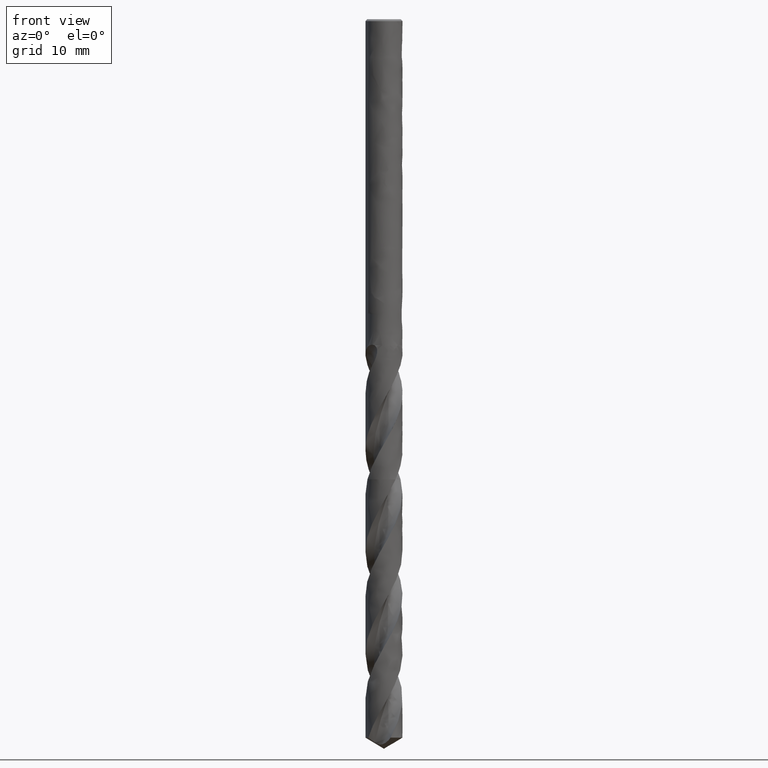
[diagram: clean part render]
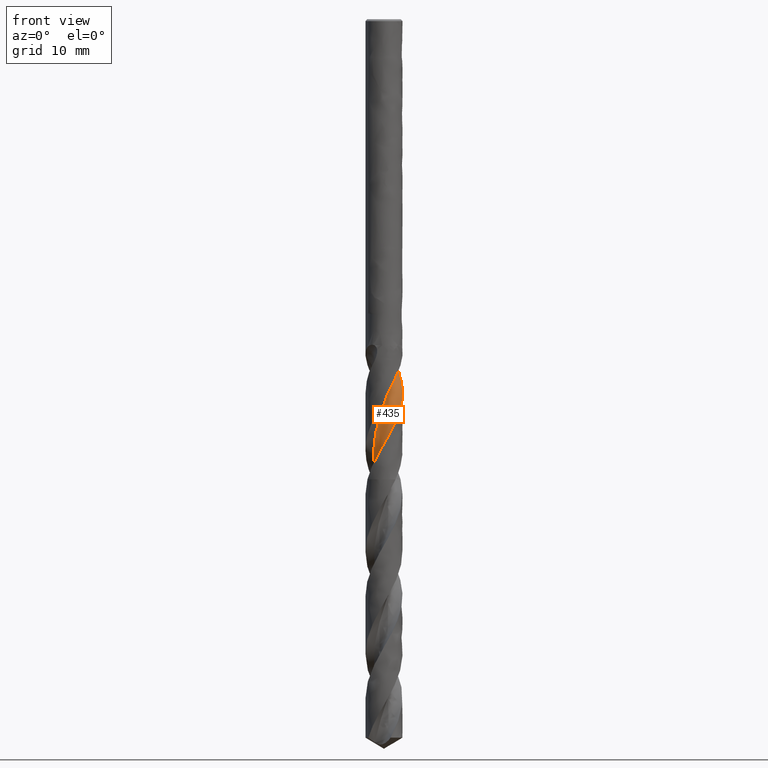
[diagram: same view with one face highlighted and labeled with its STEP entity id]
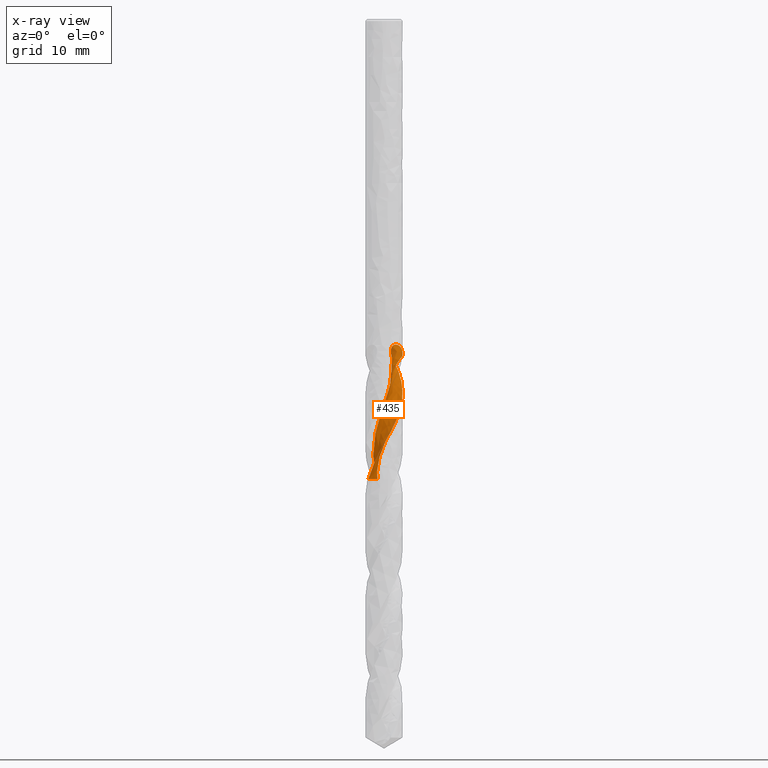
[diagram: x-ray of the same camera — body ghosted, the highlighted face saturated]
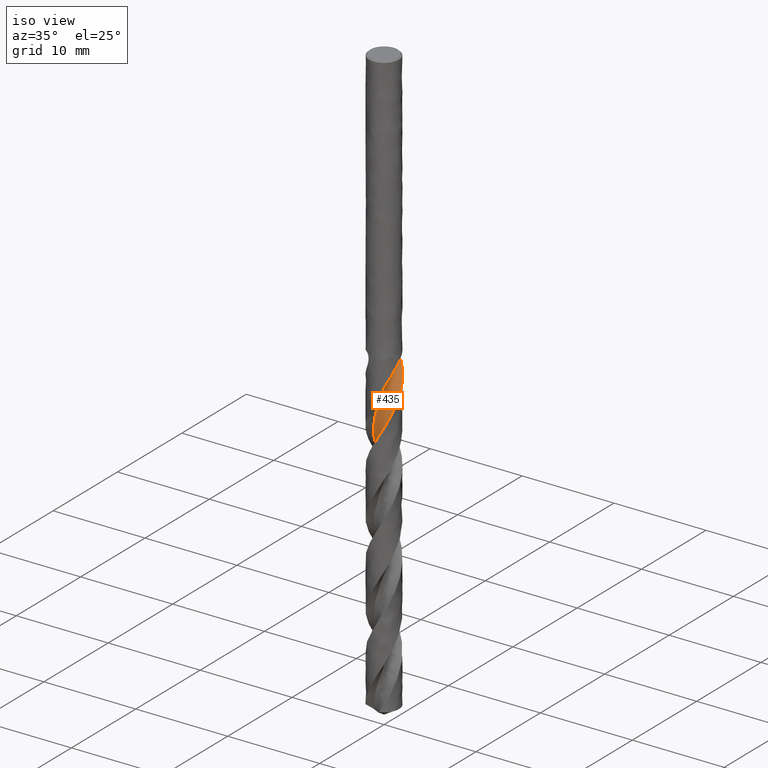
[diagram: same view with one face highlighted and labeled with its STEP entity id]
A machine part, front view. The second image highlights one B-rep face of the part: STEP entity #435.
The next image is the same camera in x-ray: the body ghosted, the highlighted face saturated — about 0% of this face is hidden behind the body in this view.
A second angle (iso view) of the same face is appended — the face is thin or edge-on in the first view.
In plain terms, the highlighted face is a freeform B-spline surface patch.
Its self-contained STEP definition (entity closure, byte-faithful):
#131 = VERTEX_POINT('', #132);
#132 = CARTESIAN_POINT('', (-0.686757036045981, 0.639588430512684, -41.));
#138 = EDGE_CURVE('', #131, #139, #141, .T.);
#139 = VERTEX_POINT('', #140);
#140 = CARTESIAN_POINT('', (1.64538893806369, -0.123268984329499, -29.9833429949825));
#141 = B_SPLINE_CURVE_WITH_KNOTS('', 3, (#142, #143, #144, #145, #146, #147, #148, #149, #150, #151, #152, #153, #154, #155, #156, #157, #158, #159, #160, #161, #162, #163, #164, #165, #166, #167, #168, #169, #170, #171, #172, #173, #174, #175, #176, #177, #178, #179, #180, #181), .UNSPECIFIED., .F., .U., (4, 1, 1, 1, 1, 1, 1, 1, 1, 1, 1, 1, 1, 1, 1, 1, 1, 1, 1, 1, 1, 1, 1, 1, 1, 1, 1, 1, 1, 1, 1, 1, 1, 1, 1, 1, 1, 4), (24.05, 24.2352941176471, 24.5382352941176, 24.8411764705882, 25.1441176470588, 25.4470588235294, 25.75, 26.0529411764706, 26.3558823529412, 26.6588235294118, 26.9617647058823, 27.2647058823529, 27.5676470588235, 27.8705882352941, 28.1735294117647, 28.4764705882353, 28.7794117647059, 29.0823529411765, 29.3852941176471, 29.6882352941176, 29.9911764705882, 30.2941176470588, 30.5970588235294, 30.9, 31.2029411764706, 31.5058823529412, 31.8088235294118, 32.1117647058824, 32.4147058823529, 32.7176470588235, 33.0205882352941, 33.3235294117647, 33.6264705882353, 33.9294117647059, 34.2323529411765, 34.5352941176471, 34.8382352941176, 35.0666570050175), .UNSPECIFIED.);
#142 = CARTESIAN_POINT('', (-0.686757036045981, 0.639588430512685, -41.));
#143 = CARTESIAN_POINT('', (-0.700665932673765, 0.625100771862666, -40.9382352941176));
#144 = CARTESIAN_POINT('', (-0.736114069390146, 0.585738301813656, -40.7754901960784));
#145 = CARTESIAN_POINT('', (-0.788106081213046, 0.517201625864363, -40.5117647058823));
#146 = CARTESIAN_POINT('', (-0.839384088118501, 0.432534128452643, -40.2088235294118));
#147 = CARTESIAN_POINT('', (-0.881630649341023, 0.342826234870914, -39.9058823529412));
#148 = CARTESIAN_POINT('', (-0.914354475800272, 0.249034502189617, -39.6029411764706));
#149 = CARTESIAN_POINT('', (-0.937164869620156, 0.1521629860689, -39.3));
#150 = CARTESIAN_POINT('', (-0.9497762816477, 0.0532527389827138, -38.9970588235294));
#151 = CARTESIAN_POINT('', (-0.952011780668234, -0.0466291259462288, -38.6941176470588));
#152 = CARTESIAN_POINT('', (-0.943805393127224, -0.14640069357702, -38.3911764705882));
#153 = CARTESIAN_POINT('', (-0.925203283588876, -0.244976712027457, -38.0882352941176));
#154 = CARTESIAN_POINT('', (-0.896363757948076, -0.34128014604133, -37.7852941176471));
#155 = CARTESIAN_POINT('', (-0.857556083459058, -0.434253698331497, -37.4823529411765));
#156 = CARTESIAN_POINT('', (-0.809158131795493, -0.522871178485597, -37.1794117647059));
#157 = CARTESIAN_POINT('', (-0.751652863628418, -0.606148599776783, -36.8764705882353));
#158 = CARTESIAN_POINT('', (-0.685623684964381, -0.683154886844246, -36.5735294117647));
#159 = CARTESIAN_POINT('', (-0.611748718521199, -0.753022078649663, -36.2705882352941));
#160 = CARTESIAN_POINT('', (-0.530794040455969, -0.814954922679561, -35.9676470588235));
#161 = CARTESIAN_POINT('', (-0.443605960385043, -0.868239735737724, -35.6647058823529));
#162 = CARTESIAN_POINT('', (-0.351102371074183, -0.912252511578268, -35.3617647058824));
#163 = CARTESIAN_POINT('', (-0.254263435249438, -0.946465897205201, -35.0588235294118));
#164 = CARTESIAN_POINT('', (-0.154121022521543, -0.970456035279019, -34.7558823529412));
#165 = CARTESIAN_POINT('', (-0.0517495396380835, -0.983905178681798, -34.4529411764706));
#166 = CARTESIAN_POINT('', (0.0517512210747065, -0.986615031214086, -34.15));
#167 = CARTESIAN_POINT('', (0.155245704874254, -0.978474730868902, -33.8470588235294));
#168 = CARTESIAN_POINT('', (0.257656666430115, -0.959592561280596, -33.5441176470588));
#169 = CARTESIAN_POINT('', (0.35767057470852, -0.929810908371676, -33.2411764705882));
#170 = CARTESIAN_POINT('', (0.454894096951365, -0.890517157731699, -32.9382352941176));
#171 = CARTESIAN_POINT('', (0.544388819599685, -0.835519072904824, -32.6352941176471));
#172 = CARTESIAN_POINT('', (0.623589671507978, -0.766986351918539, -32.3323529411765));
#173 = CARTESIAN_POINT('', (0.688754038056814, -0.685185029229231, -32.0294117647059));
#174 = CARTESIAN_POINT('', (0.743166870991807, -0.599490030311669, -31.7264705882353));
#175 = CARTESIAN_POINT('', (0.826212133758143, -0.536020789862131, -31.4235294117647));
#176 = CARTESIAN_POINT('', (0.936538368571794, -0.477623889152493, -31.1205882352941));
#177 = CARTESIAN_POINT('', (1.07957781326506, -0.415752720930118, -30.8176470588235));
#178 = CARTESIAN_POINT('', (1.25603341248, -0.338514197202079, -30.5147058823529));
#179 = CARTESIAN_POINT('', (1.44767890476463, -0.242936707183144, -30.2366045277393));
#180 = CARTESIAN_POINT('', (1.58436998697717, -0.162341636272813, -30.0594835652824));
#181 = CARTESIAN_POINT('', (1.64538893806369, -0.123268984329499, -29.9833429949825));
#435 = ADVANCED_FACE('', (#436), #747, .T.);
#436 = FACE_OUTER_BOUND('', #437, .T.);
#437 = EDGE_LOOP('', (#438, #489, #519, #570, #581, #683, #691, #746));
#438 = ORIENTED_EDGE('', *, *, #439, .T.);
#439 = EDGE_CURVE('', #131, #440, #442, .T.);
#440 = VERTEX_POINT('', #441);
#441 = CARTESIAN_POINT('', (-1.40092356684688, -0.725806815283878, -41.));
#442 = B_SPLINE_CURVE_WITH_KNOTS('', 3, (#443, #444, #445, #446, #447, #448, #449, #450, #451, #452, #453, #454, #455, #456, #457, #458, #459, #460, #461, #462, #463, #464, #465, #466, #467, #468, #469, #470, #471, #472, #473, #474, #475, #476, #477, #478, #479, #480, #481, #482, #483, #484, #485, #486, #487, #488), .UNSPECIFIED., .F., .U., (4, 3, 3, 3, 3, 3, 3, 3, 3, 3, 3, 3, 3, 3, 3, 4), (0., 0.132503633331537, 0.264662383324229, 0.396488746283831, 0.527991385736289, 0.659175525078812, 0.79004318420083, 0.877254789143763, 0.903163024382912, 1.0356640318367, 1.16782026451807, 1.29964418828105, 1.43114443978512, 1.56232621786374, 1.69319151908511, 1.80431495269448), .UNSPECIFIED.);
#443 = CARTESIAN_POINT('', (-0.686757036045978, 0.639588430512684, -41.));
#444 = CARTESIAN_POINT('', (-0.666438998001601, 0.600371358243492, -41.));
#445 = CARTESIAN_POINT('', (-0.648846925874555, 0.559619036275449, -41.));
#446 = CARTESIAN_POINT('', (-0.634241715901366, 0.51793583499509, -41.));
#447 = CARTESIAN_POINT('', (-0.619674520686365, 0.476361127657651, -41.));
#448 = CARTESIAN_POINT('', (-0.608006853660955, 0.43365568955069, -41.));
#449 = CARTESIAN_POINT('', (-0.599410853905625, 0.390449575922732, -41.));
#450 = CARTESIAN_POINT('', (-0.590836473595509, 0.347352128213004, -41.));
#451 = CARTESIAN_POINT('', (-0.585276246224857, 0.303545391048659, -41.));
#452 = CARTESIAN_POINT('', (-0.582811794077059, 0.259672432721161, -41.));
#453 = CARTESIAN_POINT('', (-0.580353393837806, 0.215907212387943, -41.));
#454 = CARTESIAN_POINT('', (-0.580963524084044, 0.171862738341407, -41.));
#455 = CARTESIAN_POINT('', (-0.584633272081576, 0.128182408761765, -41.));
#456 = CARTESIAN_POINT('', (-0.588294131929443, 0.084607873178587, -41.));
#457 = CARTESIAN_POINT('', (-0.595017495500868, 0.0411843098364866, -41.));
#458 = CARTESIAN_POINT('', (-0.604705621884309, -0.00145701112445288, -41.));
#459 = CARTESIAN_POINT('', (-0.614370375774783, -0.043995460391238, -41.));
#460 = CARTESIAN_POINT('', (-0.627032199045684, -0.085960838690788, -41.));
#461 = CARTESIAN_POINT('', (-0.642507904278067, -0.126746003657313, -41.));
#462 = CARTESIAN_POINT('', (-0.652821079435281, -0.153925672938908, -41.));
#463 = CARTESIAN_POINT('', (-0.664408150185179, -0.180655332614532, -41.));
#464 = CARTESIAN_POINT('', (-0.677194517954621, -0.20676289480147, -41.));
#465 = CARTESIAN_POINT('', (-0.680993005830652, -0.214518753246026, -41.));
#466 = CARTESIAN_POINT('', (-0.684898696263466, -0.222223020417044, -41.));
#467 = CARTESIAN_POINT('', (-0.688909366867293, -0.229871312492007, -41.));
#468 = CARTESIAN_POINT('', (-0.709420910423507, -0.268986535735851, -41.));
#469 = CARTESIAN_POINT('', (-0.732752069434392, -0.306746447079983, -41.));
#470 = CARTESIAN_POINT('', (-0.758556848773595, -0.342591076687907, -41.));
#471 = CARTESIAN_POINT('', (-0.784294482684286, -0.378342436635074, -41.));
#472 = CARTESIAN_POINT('', (-0.812619545222353, -0.412364551985698, -41.));
#473 = CARTESIAN_POINT('', (-0.843114158062266, -0.444155496060016, -41.));
#474 = CARTESIAN_POINT('', (-0.873532091720243, -0.475866501307192, -41.));
#475 = CARTESIAN_POINT('', (-0.906257642246221, -0.505512948407958, -41.));
#476 = CARTESIAN_POINT('', (-0.9408104271853, -0.532659653452241, -41.));
#477 = CARTESIAN_POINT('', (-0.975278373366485, -0.559739704166318, -41.));
#478 = CARTESIAN_POINT('', (-1.01173257623434, -0.584464345572396, -41.));
#479 = CARTESIAN_POINT('', (-1.04964053495671, -0.606472415140838, -41.));
#480 = CARTESIAN_POINT('', (-1.08745668642146, -0.628427184542754, -41.));
#481 = CARTESIAN_POINT('', (-1.12690298509468, -0.647785097926164, -41.));
#482 = CARTESIAN_POINT('', (-1.16740600089809, -0.664264749679898, -41.));
#483 = CARTESIAN_POINT('', (-1.20781130292344, -0.680704644171064, -41.));
#484 = CARTESIAN_POINT('', (-1.2494632822023, -0.694359586887625, -41.));
#485 = CARTESIAN_POINT('', (-1.29175935216711, -0.705032029352786, -41.));
#486 = CARTESIAN_POINT('', (-1.3276747894817, -0.714094465618613, -41.));
#487 = CARTESIAN_POINT('', (-1.36418995831475, -0.721043581846571, -41.));
#488 = CARTESIAN_POINT('', (-1.40092356684688, -0.725806815283875, -41.));
#489 = ORIENTED_EDGE('', *, *, #490, .T.);
#490 = EDGE_CURVE('', #440, #491, #493, .T.);
#491 = VERTEX_POINT('', #492);
#492 = CARTESIAN_POINT('', (1.46615714011467, -0.756890507597214, -34.6872458062529));
#493 = (
   BOUNDED_CURVE ()
   B_SPLINE_CURVE (3, (#494, #495, #496, #497, #498, #499, #500, #501, #502, #503, #504, #505, #506, #507, #508, #509, #510, #511, #512, #513, #514, #515, #516, #517, #518), .UNSPECIFIED., .F., .U.)
   B_SPLINE_CURVE_WITH_KNOTS ((4, 1, 1, 1, 1, 1, 1, 1, 1, 1, 1, 1, 1, 1, 1, 1, 1, 1, 1, 1, 1, 1, 4), (24.05, 24.2352941176471, 24.5382352941176, 24.8411764705882, 25.1441176470588, 25.4470588235294, 25.75, 26.0529411764706, 26.3558823529412, 26.6588235294118, 26.9617647058823, 27.2647058823529, 27.5676470588235, 27.8705882352941, 28.1735294117647, 28.4764705882353, 28.7794117647059, 29.0823529411765, 29.3852941176471, 29.6882352941176, 29.9911764705882, 30.2941176470588, 30.3627541937471), .UNSPECIFIED.)
   CURVE ()
   GEOMETRIC_REPRESENTATION_ITEM ()
   RATIONAL_B_SPLINE_CURVE ((1., 1., 1., 1., 1., 1., 1., 1., 1., 1., 1., 1., 1., 1., 1., 1., 1., 1., 1., 1., 1., 1., 1., 1., 1.))
   REPRESENTATION_ITEM ('')
);
#494 = CARTESIAN_POINT('', (-1.40092356684688, -0.725806815283878, -41.));
#495 = CARTESIAN_POINT('', (-1.38584746098911, -0.756019496660122, -40.9382352941176));
#496 = CARTESIAN_POINT('', (-1.34356231678633, -0.834398340004897, -40.7754901960784));
#497 = CARTESIAN_POINT('', (-1.26443675277258, -0.955464454201276, -40.5117647058823));
#498 = CARTESIAN_POINT('', (-1.1593668617249, -1.08451902225803, -40.2088235294118));
#499 = CARTESIAN_POINT('', (-1.04121067531852, -1.20212308053523, -39.9058823529412));
#500 = CARTESIAN_POINT('', (-0.911205023115936, -1.30695799321325, -39.6029411764706));
#501 = CARTESIAN_POINT('', (-0.770718807005044, -1.39783754367522, -39.3));
#502 = CARTESIAN_POINT('', (-0.621238949669073, -1.47372108743751, -38.9970588235294));
#503 = CARTESIAN_POINT('', (-0.46435504003497, -1.53372522748379, -38.6941176470588));
#504 = CARTESIAN_POINT('', (-0.301742829629032, -1.57713388351302, -38.3911764705882));
#505 = CARTESIAN_POINT('', (-0.135146746392463, -1.60340664249137, -38.0882352941176));
#506 = CARTESIAN_POINT('', (0.0336383964941965, -1.61218529501256, -37.7852941176471));
#507 = CARTESIAN_POINT('', (0.202786309950684, -1.6032984801647, -37.4823529411765));
#508 = CARTESIAN_POINT('', (0.370458562331627, -1.57676438067225, -37.1794117647059));
#509 = CARTESIAN_POINT('', (0.53482413684598, -1.5327914299397, -36.8764705882353));
#510 = CARTESIAN_POINT('', (0.694079010657443, -1.47177701271932, -36.5735294117647));
#511 = CARTESIAN_POINT('', (0.846465548175368, -1.39430416257949, -36.2705882352941));
#512 = CARTESIAN_POINT('', (0.990291515376966, -1.30113627702954, -35.9676470588235));
#513 = CARTESIAN_POINT('', (1.12394847372694, -1.19320990323702, -35.6647058823529));
#514 = CARTESIAN_POINT('', (1.24592950751246, -1.0716256249388, -35.3617647058824));
#515 = CARTESIAN_POINT('', (1.35484553461902, -0.937637260226009, -35.0588235294118));
#516 = CARTESIAN_POINT('', (1.42505408131836, -0.830021138233679, -34.833983896202));
#517 = CARTESIAN_POINT('', (1.45986146487784, -0.768358614022745, -34.710124655149));
#518 = CARTESIAN_POINT('', (1.46615714011467, -0.756890507597213, -34.6872458062529));
#519 = ORIENTED_EDGE('', *, *, #520, .F.);
#520 = EDGE_CURVE('', #521, #491, #523, .T.);
#521 = VERTEX_POINT('', #522);
#522 = CARTESIAN_POINT('', (1.53910565013381, 0.594687983505777, -32.2474321175249));
#523 = B_SPLINE_CURVE_WITH_KNOTS('', 3, (#524, #525, #526, #527, #528, #529, #530, #531, #532, #533, #534, #535, #536, #537, #538, #539, #540, #541, #542, #543, #544, #545, #546, #547, #548, #549, #550, #551, #552, #553, #554, #555, #556, #557, #558, #559, #560, #561, #562, #563, #564, #565, #566, #567, #568, #569), .UNSPECIFIED., .F., .U., (4, 3, 3, 3, 3, 3, 3, 3, 3, 3, 3, 3, 3, 3, 3, 4), (0., 0.0875494775017101, 0.284421161959008, 0.481274884137651, 0.678093466911457, 0.809346629557163, 1.00613133969555, 1.13737751973871, 1.2248961605815, 1.26381913148016, 1.46115644533372, 1.65847511778099, 1.95457678031589, 2.2505925900521, 2.54652905972296, 2.81024826565918), .UNSPECIFIED.);
#524 = CARTESIAN_POINT('', (1.53910565013381, 0.594687983505777, -32.247432117525));
#525 = CARTESIAN_POINT('', (1.54411796900874, 0.581715654293429, -32.2730885419306));
#526 = CARTESIAN_POINT('', (1.54897857578513, 0.568648297674712, -32.2987272173271));
#527 = CARTESIAN_POINT('', (1.55368591632017, 0.555481838972569, -32.3243424879544));
#528 = CARTESIAN_POINT('', (1.56427126859061, 0.525874547450152, -32.3819433054594));
#529 = CARTESIAN_POINT('', (1.57408458964567, 0.495753723457203, -32.4394297781565));
#530 = CARTESIAN_POINT('', (1.58306273670135, 0.465201431282883, -32.4968096168594));
#531 = CARTESIAN_POINT('', (1.59204006460429, 0.434651926654102, -32.5541842203115));
#532 = CARTESIAN_POINT('', (1.60018380715275, 0.403665832505781, -32.6114647041189));
#533 = CARTESIAN_POINT('', (1.60744113950628, 0.372334504207391, -32.6686607596191));
#534 = CARTESIAN_POINT('', (1.61469717638856, 0.341008768712719, -32.7258466053285));
#535 = CARTESIAN_POINT('', (1.62106971866525, 0.309329346773994, -32.782958998434));
#536 = CARTESIAN_POINT('', (1.62652105668907, 0.277361230433366, -32.8399896496349));
#537 = CARTESIAN_POINT('', (1.63015641137049, 0.256042530164318, -32.8780218985839));
#538 = CARTESIAN_POINT('', (1.63338276443771, 0.234592482104956, -32.916022107913));
#539 = CARTESIAN_POINT('', (1.6361903489102, 0.21302850075315, -32.9539861293364));
#540 = CARTESIAN_POINT('', (1.64039969278788, 0.180698142122483, -33.0109046736281));
#541 = CARTESIAN_POINT('', (1.64366710590381, 0.148102835578697, -33.0677508066599));
#542 = CARTESIAN_POINT('', (1.64596090858072, 0.115380619795072, -33.1245547362146));
#543 = CARTESIAN_POINT('', (1.64749076747527, 0.0935564352782559, -33.1624402953124));
#544 = CARTESIAN_POINT('', (1.6485878839774, 0.0716745278174714, -33.2003125758046));
#545 = CARTESIAN_POINT('', (1.64924852074226, 0.0497927387223025, -33.2381900354775));
#546 = CARTESIAN_POINT('', (1.64968905190082, 0.0352013468799783, -33.2634477899361));
#547 = CARTESIAN_POINT('', (1.64993575049179, 0.0206102661880688, -33.2887098460537));
#548 = CARTESIAN_POINT('', (1.6499890036537, 0.006023937406053, -33.3139743096468));
#549 = CARTESIAN_POINT('', (1.65001268742268, -0.000463174884921591, -33.3252104071426));
#550 = CARTESIAN_POINT('', (1.64999811038105, -0.00694945005227383, -33.3364471336925));
#551 = CARTESIAN_POINT('', (1.64994530614357, -0.0134345351539962, -33.3476843022267));
#552 = CARTESIAN_POINT('', (1.64967759157441, -0.0463135586339243, -33.4046561263878));
#553 = CARTESIAN_POINT('', (1.64842735329261, -0.0791654028204028, -33.4616474696399));
#554 = CARTESIAN_POINT('', (1.64619769765188, -0.111951508456203, -33.5186298398722));
#555 = CARTESIAN_POINT('', (1.64396825263485, -0.144734516963012, -33.5756068272831));
#556 = CARTESIAN_POINT('', (1.64075807533308, -0.177464562781536, -33.6325843789034));
#557 = CARTESIAN_POINT('', (1.63657262262832, -0.210071537490078, -33.6895522676853));
#558 = CARTESIAN_POINT('', (1.63029182066989, -0.259002433394075, -33.7750398009747));
#559 = CARTESIAN_POINT('', (1.62181125598932, -0.307671306018409, -33.8605442749296));
#560 = CARTESIAN_POINT('', (1.6111728681114, -0.355839836248396, -33.9460335537541));
#561 = CARTESIAN_POINT('', (1.60053756476656, -0.403994400318607, -34.0314980455046));
#562 = CARTESIAN_POINT('', (1.58774004454993, -0.451678249054663, -34.1169872411854));
#563 = CARTESIAN_POINT('', (1.57283628545866, -0.498684288046426, -34.2024533826185));
#564 = CARTESIAN_POINT('', (1.55793652096897, -0.545677728176631, -34.2878966168654));
#565 = CARTESIAN_POINT('', (1.54092442184151, -0.592015437205011, -34.373360673698));
#566 = CARTESIAN_POINT('', (1.52187765463306, -0.637486003241219, -34.4588041108886));
#567 = CARTESIAN_POINT('', (1.50490442274498, -0.678006394600473, -34.5349457078788));
#568 = CARTESIAN_POINT('', (1.48630863628568, -0.717855456029562, -34.611103062278));
#569 = CARTESIAN_POINT('', (1.46615714011467, -0.756890507597223, -34.6872458062529));
#570 = ORIENTED_EDGE('', *, *, #571, .T.);
#571 = EDGE_CURVE('', #521, #572, #574, .T.);
#572 = VERTEX_POINT('', #573);
#573 = CARTESIAN_POINT('', (1.32723117543861, 0.980284350045358, -31.4755215713197));
#574 = (
   BOUNDED_CURVE ()
   B_SPLINE_CURVE (3, (#575, #576, #577, #578, #579, #580), .UNSPECIFIED., .F., .U.)
   B_SPLINE_CURVE_WITH_KNOTS ((4, 1, 1, 4), (32.8025678824751, 33.0205882352941, 33.3235294117647, 33.5744784286803), .UNSPECIFIED.)
   CURVE ()
   GEOMETRIC_REPRESENTATION_ITEM ()
   RATIONAL_B_SPLINE_CURVE ((1., 1., 1., 1., 1., 1.))
   REPRESENTATION_ITEM ('')
);
#575 = CARTESIAN_POINT('', (1.53910565013381, 0.594687983505778, -32.2474321175249));
#576 = CARTESIAN_POINT('', (1.51855472282427, 0.631308079105639, -32.1747586665853));
#577 = CARTESIAN_POINT('', (1.46444354676382, 0.715769366710108, -32.0011048234887));
#578 = CARTESIAN_POINT('', (1.37532567018936, 0.830091171673715, -31.743801308087));
#579 = CARTESIAN_POINT('', (1.34000386861406, 0.930382062619552, -31.5591712436249));
#580 = CARTESIAN_POINT('', (1.32723117543861, 0.980284350045357, -31.4755215713197));
#581 = ORIENTED_EDGE('', *, *, #582, .F.);
#582 = EDGE_CURVE('', #583, #572, #585, .T.);
#583 = VERTEX_POINT('', #584);
#584 = CARTESIAN_POINT('', (1.04998764540543, 1.27280239805555, -29.));
#585 = B_SPLINE_CURVE_WITH_KNOTS('', 3, (#586, #587, #588, #589, #590, #591, #592, #593, #594, #595, #596, #597, #598, #599, #600, #601, #602, #603, #604, #605, #606, #607, #608, #609, #610, #611, #612, #613, #614, #615, #616, #617, #618, #619, #620, #621, #622, #623, #624, #625, #626, #627, #628, #629, #630, #631, #632, #633, #634, #635, #636, #637, #638, #639, #640, #641, #642, #643, #644, #645, #646, #647, #648, #649, #650, #651, #652, #653, #654, #655, #656, #657, #658, #659, #660, #661, #662, #663, #664, #665, #666, #667, #668, #669, #670, #671, #672, #673, #674, #675, #676, #677, #678, #679, #680, #681, #682), .UNSPECIFIED., .F., .U., (4, 3, 3, 3, 3, 3, 3, 3, 3, 3, 3, 3, 3, 3, 3, 3, 3, 3, 3, 3, 3, 3, 3, 3, 3, 3, 3, 3, 3, 3, 3, 3, 4), (0., 0.0876303127930591, 0.174973486297054, 0.233055130452764, 0.291030990434377, 0.348921100483589, 0.406762531524445, 0.464602443433246, 0.522485560539364, 0.580443415477149, 0.638490850056631, 0.69662895767908, 0.722540610505984, 0.748461545433137, 0.83589767612148, 0.923487689661412, 1.0111919792304, 1.09897793056975, 1.2309677184985, 1.36305423353449, 1.49517711764423, 1.62729333607008, 1.75937771008891, 1.89141058300535, 2.0233781190771, 2.15527384137401, 2.28709249628333, 2.41883762951828, 2.55051220943465, 2.68211681930373, 2.81364951632583, 2.94512266158331, 3.01816239662991), .UNSPECIFIED.);
#586 = CARTESIAN_POINT('', (1.04998764540571, 1.27280239805532, -29.));
#587 = CARTESIAN_POINT('', (1.02745511527649, 1.29139041948862, -29.000027134948));
#588 = CARTESIAN_POINT('', (1.00436191236108, 1.30942583990984, -29.0017599789356));
#589 = CARTESIAN_POINT('', (0.98107447238416, 1.32664723255134, -29.0055479818319));
#590 = CARTESIAN_POINT('', (0.957863338639021, 1.34381219565058, -29.0093235725341));
#591 = CARTESIAN_POINT('', (0.934322263688094, 1.36026544107529, -29.0151733340593));
#592 = CARTESIAN_POINT('', (0.911034465741511, 1.37568753800821, -29.0233882696083));
#593 = CARTESIAN_POINT('', (0.89554849770027, 1.38594295592191, -29.0288510544394));
#594 = CARTESIAN_POINT('', (0.880115084412994, 1.39578438628761, -29.0353803250106));
#595 = CARTESIAN_POINT('', (0.864962292117408, 1.40511217816052, -29.0430102663795));
#596 = CARTESIAN_POINT('', (0.849837097622152, 1.41442298131395, -29.0506263113262));
#597 = CARTESIAN_POINT('', (0.834931721529012, 1.42325883093115, -29.0593719430429));
#598 = CARTESIAN_POINT('', (0.820500435066246, 1.43153031265709, -29.0692099949638));
#599 = CARTESIAN_POINT('', (0.8060904933811, 1.43978956034287, -29.079033495789));
#600 = CARTESIAN_POINT('', (0.792090523711571, 1.44752260168377, -29.0899912285495));
#601 = CARTESIAN_POINT('', (0.778746922039617, 1.45466602057442, -29.1019613004432));
#602 = CARTESIAN_POINT('', (0.765414540821325, 1.46180343266101, -29.1139213068659));
#603 = CARTESIAN_POINT('', (0.75267690160448, 1.46838555166248, -29.1269467757307));
#604 = CARTESIAN_POINT('', (0.740733596551421, 1.47438588535702, -29.1408424676472));
#605 = CARTESIAN_POINT('', (0.728790605174169, 1.48038606146038, -29.1547377946108));
#606 = CARTESIAN_POINT('', (0.717588554876552, 1.48583225220636, -29.1695634935806));
#607 = CARTESIAN_POINT('', (0.707255076736291, 1.49073480419246, -29.1850844948783));
#608 = CARTESIAN_POINT('', (0.696913879705263, 1.49564101828175, -29.2006170900374));
#609 = CARTESIAN_POINT('', (0.68739979670399, 1.50002374291959, -29.216906383734));
#610 = CARTESIAN_POINT('', (0.678766814735183, 1.50392008139205, -29.2337159933052));
#611 = CARTESIAN_POINT('', (0.670122685986703, 1.50782145075958, -29.2505473071977));
#612 = CARTESIAN_POINT('', (0.662330758458867, 1.51124955209219, -29.2679562333307));
#613 = CARTESIAN_POINT('', (0.655387336868858, 1.51425474695375, -29.2857324104388));
#614 = CARTESIAN_POINT('', (0.648433183528704, 1.5172645866435, -29.3035360624004));
#615 = CARTESIAN_POINT('', (0.642309322726513, 1.51985925790841, -29.3217568020518));
#616 = CARTESIAN_POINT('', (0.636975674395901, 1.52209132125109, -29.3402218906118));
#617 = CARTESIAN_POINT('', (0.631633694635523, 1.52432687119016, -29.3587158225785));
#618 = CARTESIAN_POINT('', (0.627071525225367, 1.526203953867, -29.3774954042215));
#619 = CARTESIAN_POINT('', (0.623230730311516, 1.52777074746029, -29.3964256288146));
#620 = CARTESIAN_POINT('', (0.621518921165038, 1.52846905384316, -29.4048626665451));
#621 = CARTESIAN_POINT('', (0.619949159649647, 1.52910608849325, -29.4133349297979));
#622 = CARTESIAN_POINT('', (0.618515800172791, 1.52968565559615, -29.4218326418787));
#623 = CARTESIAN_POINT('', (0.617081927236356, 1.5302654303122, -29.4303333980191));
#624 = CARTESIAN_POINT('', (0.615784109736095, 1.53078787323758, -29.4388622028099));
#625 = CARTESIAN_POINT('', (0.614616609210992, 1.53125648527018, -29.4474104383334));
#626 = CARTESIAN_POINT('', (0.610678412970057, 1.53283720074358, -29.4762452253688));
#627 = CARTESIAN_POINT('', (0.608216258798784, 1.5338105003704, -29.5053460882798));
#628 = CARTESIAN_POINT('', (0.607015136635347, 1.53428570478108, -29.5344628271207));
#629 = CARTESIAN_POINT('', (0.605811900561994, 1.53476174552577, -29.5636308098441));
#630 = CARTESIAN_POINT('', (0.605870373796186, 1.53473859631465, -29.5928813328483));
#631 = CARTESIAN_POINT('', (0.606997350023357, 1.53429274164503, -29.6220528385721));
#632 = CARTESIAN_POINT('', (0.608125796582166, 1.53384630528237, -29.6512624034728));
#633 = CARTESIAN_POINT('', (0.61032671349361, 1.53297505367111, -29.6804406154771));
#634 = CARTESIAN_POINT('', (0.613435187632264, 1.53173015592648, -29.7094829810297));
#635 = CARTESIAN_POINT('', (0.616546556082046, 1.53048409905321, -29.7385523880303));
#636 = CARTESIAN_POINT('', (0.620571030030747, 1.528861829661, -29.7675206442592));
#637 = CARTESIAN_POINT('', (0.625370370733358, 1.52689616523483, -29.7963193627535));
#638 = CARTESIAN_POINT('', (0.632586376846759, 1.52394070793452, -29.8396194203218));
#639 = CARTESIAN_POINT('', (0.641562975015067, 1.52020524034978, -29.8826024001326));
#640 = CARTESIAN_POINT('', (0.651916462333919, 1.51575226410454, -29.9251309406718));
#641 = CARTESIAN_POINT('', (0.662277537079752, 1.51129602454993, -29.9676906477336));
#642 = CARTESIAN_POINT('', (0.674032806838034, 1.50611396639122, -30.0098566946961));
#643 = CARTESIAN_POINT('', (0.686875360048874, 1.50023406165762, -30.0515584231182));
#644 = CARTESIAN_POINT('', (0.699721449364553, 1.49435253793447, -30.0932716338119));
#645 = CARTESIAN_POINT('', (0.713669581855332, 1.48776597611653, -30.1345625869629));
#646 = CARTESIAN_POINT('', (0.728464157843484, 1.48048639667421, -30.175400492429));
#647 = CARTESIAN_POINT('', (0.743257987435828, 1.47320718449133, -30.2162363375967));
#648 = CARTESIAN_POINT('', (0.758908698239167, 1.46522970539233, -30.2566501846099));
#649 = CARTESIAN_POINT('', (0.77519806691903, 1.45656031699515, -30.2966365416258));
#650 = CARTESIAN_POINT('', (0.79148350931874, 1.44789301820918, -30.3366132605985));
#651 = CARTESIAN_POINT('', (0.808417373127847, 1.43852872652138, -30.3761850709342));
#652 = CARTESIAN_POINT('', (0.82580880042777, 1.42847464980519, -30.415363248024));
#653 = CARTESIAN_POINT('', (0.843193446625197, 1.41842449328045, -30.4545261491257));
#654 = CARTESIAN_POINT('', (0.861043243258682, 1.4076804014678, -30.493312883172));
#655 = CARTESIAN_POINT('', (0.879184270311468, 1.39625750448724, -30.531749648831));
#656 = CARTESIAN_POINT('', (0.897316320225147, 1.38484026015991, -30.5701673939467));
#657 = CARTESIAN_POINT('', (0.915745844649712, 1.37274078423084, -30.6082489877816));
#658 = CARTESIAN_POINT('', (0.934317821137417, 1.3599816944007, -30.6460290772192));
#659 = CARTESIAN_POINT('', (0.95287969117184, 1.34722954778123, -30.6837886075792));
#660 = CARTESIAN_POINT('', (0.971589363342772, 1.33381466633847, -30.7212575901094));
#661 = CARTESIAN_POINT('', (0.990304332642506, 1.31977169569188, -30.7584797245875));
#662 = CARTESIAN_POINT('', (1.00900836668393, 1.30573693042939, -30.7956801099702));
#663 = CARTESIAN_POINT('', (1.02772128282797, 1.29107208571392, -30.8326434501568));
#664 = CARTESIAN_POINT('', (1.04631358266819, 1.27582439494, -30.869420052919));
#665 = CARTESIAN_POINT('', (1.06489551267863, 1.26058520854474, -30.9061761435813));
#666 = CARTESIAN_POINT('', (1.08336177265642, 1.2447598845949, -30.9427523285475));
#667 = CARTESIAN_POINT('', (1.10159645721517, 1.22840760558175, -30.9792027109296));
#668 = CARTESIAN_POINT('', (1.11982137657442, 1.21206408368563, -31.0156335730806));
#669 = CARTESIAN_POINT('', (1.1378182786457, 1.19519105709124, -31.0519452634338));
#670 = CARTESIAN_POINT('', (1.15547956261924, 1.17786543389715, -31.0881994761548));
#671 = CARTESIAN_POINT('', (1.1731314616312, 1.16054901729916, -31.1244344238896));
#672 = CARTESIAN_POINT('', (1.1904499523199, 1.14277862659613, -31.1606190811345));
#673 = CARTESIAN_POINT('', (1.20734050464136, 1.12464612472271, -31.1968177120196));
#674 = CARTESIAN_POINT('', (1.22422182744035, 1.10652353101158, -31.2329965628482));
#675 = CARTESIAN_POINT('', (1.24067862967556, 1.08803619113801, -31.2691952201272));
#676 = CARTESIAN_POINT('', (1.25663458562679, 1.06928458242255, -31.3054733312938));
#677 = CARTESIAN_POINT('', (1.27258331747821, 1.05054146354585, -31.3417350174528));
#678 = CARTESIAN_POINT('', (1.28803435045324, 1.0315312911001, -31.3780823756652));
#679 = CARTESIAN_POINT('', (1.30292855830125, 1.01236217430475, -31.4145691399758));
#680 = CARTESIAN_POINT('', (1.31120301612164, 1.00171279637234, -31.4348393144873));
#681 = CARTESIAN_POINT('', (1.3193066997514, 0.991013493258323, -31.4551538505759));
#682 = CARTESIAN_POINT('', (1.32723117543861, 0.980284350045358, -31.4755215713197));
#683 = ORIENTED_EDGE('', *, *, #684, .T.);
#684 = EDGE_CURVE('', #583, #685, #687, .T.);
#685 = VERTEX_POINT('', #686);
#686 = CARTESIAN_POINT('', (1.05106588342437, 1.27191214661286, -29.));
#687 = LINE('', #688, #689);
#688 = CARTESIAN_POINT('', (1.04998764540543, 1.27280239805555, -29.));
#689 = VECTOR('', #690, 0.00139826494509455);
#690 = DIRECTION('', (0.00107823801893736, -0.00089025144268251, 0.));
#691 = ORIENTED_EDGE('', *, *, #692, .T.);
#692 = EDGE_CURVE('', #685, #139, #693, .T.);
#693 = B_SPLINE_CURVE_WITH_KNOTS('', 3, (#694, #695, #696, #697, #698, #699, #700, #701, #702, #703, #704, #705, #706, #707, #708, #709, #710, #711, #712, #713, #714, #715, #716, #717, #718, #719, #720, #721, #722, #723, #724, #725, #726, #727, #728, #729, #730, #731, #732, #733, #734, #735, #736, #737, #738, #739, #740, #741, #742, #743, #744, #745), .UNSPECIFIED., .F., .U., (4, 3, 3, 3, 3, 3, 3, 3, 3, 3, 3, 3, 3, 3, 3, 3, 3, 4), (0., 0.0877991639400641, 0.175287604423629, 0.262557689548064, 0.349676160805079, 0.436689587128276, 0.52363030035957, 0.653469681222114, 0.783201608597501, 0.912878392095424, 1.04253398471002, 1.17219167461091, 1.36547646148284, 1.55888412843109, 1.68869950486073, 1.71458963685126, 1.74049911277958, 1.90488424193574), .UNSPECIFIED.);
#694 = CARTESIAN_POINT('', (1.05106588342509, 1.27191214661227, -29.));
#695 = CARTESIAN_POINT('', (1.0736260399898, 1.25326918376845, -29.0000271583664));
#696 = CARTESIAN_POINT('', (1.09571893426176, 1.23399628981486, -29.0017566670251));
#697 = CARTESIAN_POINT('', (1.11713486768011, 1.21429390487367, -29.0048703929037));
#698 = CARTESIAN_POINT('', (1.13847500956975, 1.19466124716991, -29.0079730992278));
#699 = CARTESIAN_POINT('', (1.15921045437204, 1.17454251677717, -29.0124585366966));
#700 = CARTESIAN_POINT('', (1.17922740196365, 1.15408956951272, -29.0180682112173));
#701 = CARTESIAN_POINT('', (1.19919439086637, 1.13368766911366, -29.0236638850028));
#702 = CARTESIAN_POINT('', (1.21849324623835, 1.11290693392881, -29.0303908975043));
#703 = CARTESIAN_POINT('', (1.23706477730944, 1.09186571369392, -29.0380456369218));
#704 = CARTESIAN_POINT('', (1.25560404415569, 1.07086104826209, -29.0456870778001));
#705 = CARTESIAN_POINT('', (1.27345184460108, 1.04955996226376, -29.054266739729));
#706 = CARTESIAN_POINT('', (1.29058008014743, 1.02805790533736, -29.0636250033926));
#707 = CARTESIAN_POINT('', (1.30768766296259, 1.00658177496952, -29.0729719831325));
#708 = CARTESIAN_POINT('', (1.3241018566185, 0.984875049878032, -29.0831091257381));
#709 = CARTESIAN_POINT('', (1.33981259012125, 0.963017249768973, -29.0939104693031));
#710 = CARTESIAN_POINT('', (1.35551019489137, 0.94117771521151, -29.1047027866854));
#711 = CARTESIAN_POINT('', (1.37052389183992, 0.919162157403285, -29.1161709277276));
#712 = CARTESIAN_POINT('', (1.38485435317065, 0.897038695098663, -29.1282143688218));
#713 = CARTESIAN_POINT('', (1.40625581351646, 0.863998977095362, -29.146200337386));
#714 = CARTESIAN_POINT('', (1.42616979729101, 0.83066155489936, -29.1654987935641));
#715 = CARTESIAN_POINT('', (1.44462456011693, 0.797220095272921, -29.1858514602924));
#716 = CARTESIAN_POINT('', (1.46306405000634, 0.763806311390379, -29.2061872834021));
#717 = CARTESIAN_POINT('', (1.48007983321397, 0.730229736531999, -29.2276124736773));
#718 = CARTESIAN_POINT('', (1.49571765988547, 0.696655353748713, -29.2499342262966));
#719 = CARTESIAN_POINT('', (1.51134883953941, 0.663095242098892, -29.2722464908275));
#720 = CARTESIAN_POINT('', (1.52562639529613, 0.629488245368595, -29.2954878377488));
#721 = CARTESIAN_POINT('', (1.53860621922762, 0.595978944388227, -29.3195108046416));
#722 = CARTESIAN_POINT('', (1.55158392208602, 0.562475119266131, -29.3435298458673));
#723 = CARTESIAN_POINT('', (1.56328063890966, 0.52902725516794, -29.3683605595412));
#724 = CARTESIAN_POINT('', (1.57375898795749, 0.495764710142826, -29.3938879705023));
#725 = CARTESIAN_POINT('', (1.58423750650128, 0.462501627068574, -29.4194157943904));
#726 = CARTESIAN_POINT('', (1.59350904064465, 0.42938791256617, -29.445668188942));
#727 = CARTESIAN_POINT('', (1.60164137231014, 0.396541188914418, -29.4725542404551));
#728 = CARTESIAN_POINT('', (1.61376449430883, 0.347575547267378, -29.5126341211047));
#729 = CARTESIAN_POINT('', (1.62337488297026, 0.299120202601476, -29.5541894609392));
#730 = CARTESIAN_POINT('', (1.63071569276777, 0.251527989219727, -29.5969924365219));
#731 = CARTESIAN_POINT('', (1.63806116945751, 0.203905519267312, -29.6398226239354));
#732 = CARTESIAN_POINT('', (1.64314794367759, 0.157063078480137, -29.6839819085804));
#733 = CARTESIAN_POINT('', (1.64624198033771, 0.111298437427429, -29.7292842837113));
#734 = CARTESIAN_POINT('', (1.64831870014958, 0.080581174770958, -29.7596912731217));
#735 = CARTESIAN_POINT('', (1.64950032653196, 0.0503212362247891, -29.7906409179328));
#736 = CARTESIAN_POINT('', (1.64987141458733, 0.0205989156944831, -29.8220876021973));
#737 = CARTESIAN_POINT('', (1.64994542368392, 0.0146711525684276, -29.8283592691498));
#738 = CARTESIAN_POINT('', (1.64998721968005, 0.00876428197698934, -29.8346512109052));
#739 = CARTESIAN_POINT('', (1.64999748845126, 0.00287890683081587, -29.8409630975747));
#740 = CARTESIAN_POINT('', (1.65000776489483, -0.0030108656019657, -29.8472797002009));
#741 = CARTESIAN_POINT('', (1.64998646725117, -0.00887925723062277, -29.8536164349925));
#742 = CARTESIAN_POINT('', (1.64993428793451, -0.0147256747905975, -29.8599729806493));
#743 = CARTESIAN_POINT('', (1.6496032313075, -0.0518188258970114, -29.9003026878833));
#744 = CARTESIAN_POINT('', (1.64802789013748, -0.088044369038821, -29.9414531495226));
#745 = CARTESIAN_POINT('', (1.64538893806369, -0.123268984329499, -29.9833429949825));
#746 = ORIENTED_EDGE('', *, *, #138, .F.);
#747 = (
   BOUNDED_SURFACE ()
   B_SPLINE_SURFACE (3, 2, ((#748, #749, #750, #751, #752), (#753, #754, #755, #756, #757), (#758, #759, #760, #761, #762), (#763, #764, #765, #766, #767), (#768, #769, #770, #771, #772), (#773, #774, #775, #776, #777), (#778, #779, #780, #781, #782), (#783, #784, #785, #786, #787), (#788, #789, #790, #791, #792), (#793, #794, #795, #796, #797), (#798, #799, #800, #801, #802), (#803, #804, #805, #806, #807), (#808, #809, #810, #811, #812), (#813, #814, #815, #816, #817), (#818, #819, #820, #821, #822), (#823, #824, #825, #826, #827), (#828, #829, #830, #831, #832), (#833, #834, #835, #836, #837), (#838, #839, #840, #841, #842), (#843, #844, #845, #846, #847), (#848, #849, #850, #851, #852), (#853, #854, #855, #856, #857), (#858, #859, #860, #861, #862), (#863, #864, #865, #866, #867), (#868, #869, #870, #871, #872), (#873, #874, #875, #876, #877), (#878, #879, #880, #881, #882), (#883, #884, #885, #886, #887), (#888, #889, #890, #891, #892), (#893, #894, #895, #896, #897), (#898, #899, #900, #901, #902), (#903, #904, #905, #906, #907), (#908, #909, #910, #911, #912), (#913, #914, #915, #916, #917), (#918, #919, #920, #921, #922), (#923, #924, #925, #926, #927), (#928, #929, #930, #931, #932), (#933, #934, #935, #936, #937), (#938, #939, #940, #941, #942), (#943, #944, #945, #946, #947), (#948, #949, #950, #951, #952), (#953, #954, #955, #956, #957)), .UNSPECIFIED., .F., .F., .U.)
   B_SPLINE_SURFACE_WITH_KNOTS ((4, 1, 1, 1, 1, 1, 1, 1, 1, 1, 1, 1, 1, 1, 1, 1, 1, 1, 1, 1, 1, 1, 1, 1, 1, 1, 1, 1, 1, 1, 1, 1, 1, 1, 1, 1, 1, 1, 1, 4), (3, 2, 3), (24.0499999999977, 24.2352941176471, 24.5382352941176, 24.8411764705882, 25.1441176470588, 25.4470588235294, 25.75, 26.0529411764706, 26.3558823529412, 26.6588235294118, 26.9617647058823, 27.2647058823529, 27.5676470588235, 27.8705882352941, 28.1735294117647, 28.4764705882353, 28.7794117647059, 29.0823529411765, 29.3852941176471, 29.6882352941176, 29.9911764705882, 30.2941176470588, 30.5970588235294, 30.9, 31.2029411764706, 31.5058823529412, 31.8088235294118, 32.1117647058824, 32.4147058823529, 32.7176470588235, 33.0205882352941, 33.3235294117647, 33.6264705882353, 33.9294117647059, 34.2323529411765, 34.5352941176471, 34.8382352941176, 35.1411764705882, 35.4441176470588, 36.05), (0., 0.5, 1.), .UNSPECIFIED.)
   GEOMETRIC_REPRESENTATION_ITEM ()
   RATIONAL_B_SPLINE_SURFACE (((1., 0.887010833178221, 1., 0.887010833178221, 1.), (1., 0.887010833178222, 1., 0.887010833178222, 1.), (1., 0.887010833178222, 1., 0.887010833178222, 1.), (1., 0.887010833178222, 1., 0.887010833178222, 1.), (1., 0.887010833178222, 1., 0.887010833178222, 1.), (1., 0.887010833178222, 1., 0.887010833178222, 1.), (1., 0.887010833178222, 1., 0.887010833178222, 1.), (1., 0.887010833178221, 1., 0.887010833178221, 1.), (1., 0.887010833178222, 1., 0.887010833178222, 1.), (1., 0.887010833178222, 1., 0.887010833178222, 1.), (1., 0.887010833178222, 1., 0.887010833178222, 1.), (1., 0.887010833178222, 1., 0.887010833178222, 1.), (1., 0.887010833178222, 1., 0.887010833178222, 1.), (1., 0.887010833178221, 1., 0.887010833178221, 1.), (1., 0.887010833178221, 1., 0.887010833178221, 1.), (1., 0.887010833178222, 1., 0.887010833178222, 1.), (1., 0.887010833178222, 1., 0.887010833178222, 1.), (1., 0.887010833178222, 1., 0.887010833178222, 1.), (1., 0.887010833178222, 1., 0.887010833178222, 1.), (1., 0.887010833178221, 1., 0.887010833178221, 1.), (1., 0.887010833178222, 1., 0.887010833178222, 1.), (1., 0.887010833178221, 1., 0.887010833178221, 1.), (1., 0.887010833178221, 1., 0.887010833178221, 1.), (1., 0.887010833178221, 1., 0.887010833178221, 1.), (1., 0.887010833178222, 1., 0.887010833178222, 1.), (1., 0.887010833178222, 1., 0.887010833178222, 1.), (1., 0.887010833178221, 1., 0.887010833178221, 1.), (1., 0.887010833178221, 1., 0.887010833178221, 1.), (1., 0.887010833178222, 1., 0.887010833178222, 1.), (1., 0.887010833178221, 1., 0.887010833178221, 1.), (1., 0.887010833178222, 1., 0.887010833178222, 1.), (1., 0.887010833178222, 1., 0.887010833178222, 1.), (1., 0.887010833178222, 1., 0.887010833178222, 1.), (1., 0.887010833178221, 1., 0.887010833178221, 1.), (1., 0.887010833178222, 1., 0.887010833178222, 1.), (1., 0.887010833178222, 1., 0.887010833178222, 1.), (1., 0.887010833178222, 1., 0.887010833178222, 1.), (1., 0.887010833178222, 1., 0.887010833178222, 1.), (1., 0.887010833178222, 1., 0.887010833178222, 1.), (1., 0.887010833178222, 1., 0.887010833178222, 1.), (1., 0.887010833178221, 1., 0.887010833178221, 1.), (1., 0.887010833178222, 1., 0.887010833178222, 1.)))
   REPRESENTATION_ITEM ('')
   SURFACE ()
);
#748 = CARTESIAN_POINT('', (-1.40092356684744, -0.725806815282769, -41.0000000000023));
#749 = CARTESIAN_POINT('', (-0.915375052884454, -0.66284591899336, -41.0000000000023));
#750 = CARTESIAN_POINT('', (-0.688450413475757, -0.228994974655953, -41.0000000000023));
#751 = CARTESIAN_POINT('', (-0.461525774067061, 0.204855969681454, -41.0000000000023));
#752 = CARTESIAN_POINT('', (-0.686757036045471, 0.639588430513216, -41.0000000000023));
#753 = CARTESIAN_POINT('', (-1.3858474609895, -0.756019496659394, -40.9382352941192));
#754 = CARTESIAN_POINT('', (-0.90148857144963, -0.682648357251133, -40.9382352941192));
#755 = CARTESIAN_POINT('', (-0.683773844510491, -0.243800826042197, -40.9382352941192));
#756 = CARTESIAN_POINT('', (-0.466059117571351, 0.19504670516674, -40.9382352941192));
#757 = CARTESIAN_POINT('', (-0.700665932673436, 0.625100771863032, -40.9382352941192));
#758 = CARTESIAN_POINT('', (-1.34356231678656, -0.83439834000455, -40.7754901960792));
#759 = CARTESIAN_POINT('', (-0.863215191790779, -0.73368367716107, -40.7754901960792));
#760 = CARTESIAN_POINT('', (-0.670200021582343, -0.282438790350377, -40.7754901960792));
#761 = CARTESIAN_POINT('', (-0.477184851373908, 0.168806096460316, -40.7754901960792));
#762 = CARTESIAN_POINT('', (-0.736114069389997, 0.585738301813852, -40.7754901960792));
#763 = CARTESIAN_POINT('', (-1.26443675277258, -0.955464454201276, -40.5117647058823));
#764 = CARTESIAN_POINT('', (-0.794313584625263, -0.811048425759878, -40.5117647058823));
#765 = CARTESIAN_POINT('', (-0.642960698119128, -0.343112440558997, -40.5117647058823));
#766 = CARTESIAN_POINT('', (-0.491607811612993, 0.124823544641885, -40.5117647058823));
#767 = CARTESIAN_POINT('', (-0.788106081213045, 0.517201625864363, -40.5117647058823));
#768 = CARTESIAN_POINT('', (-1.1593668617249, -1.08451902225803, -40.2088235294118));
#769 = CARTESIAN_POINT('', (-0.706185263509733, -0.891318557775746, -40.2088235294118));
#770 = CARTESIAN_POINT('', (-0.604511532823855, -0.409278691244521, -40.2088235294118));
#771 = CARTESIAN_POINT('', (-0.502837802137977, 0.0727611752867042, -40.2088235294118));
#772 = CARTESIAN_POINT('', (-0.839384088118501, 0.432534128452643, -40.2088235294118));
#773 = CARTESIAN_POINT('', (-1.04121067531852, -1.20212308053523, -39.9058823529412));
#774 = CARTESIAN_POINT('', (-0.610001964606718, -0.962088278057431, -39.9058823529412));
#775 = CARTESIAN_POINT('', (-0.559295808143311, -0.471184474557196, -39.9058823529412));
#776 = CARTESIAN_POINT('', (-0.508589651679904, 0.0197193289430383, -39.9058823529412));
#777 = CARTESIAN_POINT('', (-0.881630649341023, 0.342826234870914, -39.9058823529412));
#778 = CARTESIAN_POINT('', (-0.911205023115936, -1.30695799321325, -39.6029411764706));
#779 = CARTESIAN_POINT('', (-0.506779806692414, -1.02255474135011, -39.6029411764706));
#780 = CARTESIAN_POINT('', (-0.507780537451842, -0.528141994864449, -39.6029411764706));
#781 = CARTESIAN_POINT('', (-0.50878126821127, -0.0337292483787913, -39.6029411764706));
#782 = CARTESIAN_POINT('', (-0.914354475800272, 0.249034502189617, -39.6029411764706));
#783 = CARTESIAN_POINT('', (-0.770718807005044, -1.39783754367522, -39.3));
#784 = CARTESIAN_POINT('', (-0.397614413718514, -1.07202292515384, -39.3));
#785 = CARTESIAN_POINT('', (-0.45050223625133, -0.579514110857409, -39.3));
#786 = CARTESIAN_POINT('', (-0.503390058784147, -0.0870052965609767, -39.3));
#787 = CARTESIAN_POINT('', (-0.937164869620156, 0.1521629860689, -39.3));
#788 = CARTESIAN_POINT('', (-0.621238949669073, -1.47372108743751, -38.9970588235294));
#789 = CARTESIAN_POINT('', (-0.28366956477574, -1.10991345584574, -38.9970588235294));
#790 = CARTESIAN_POINT('', (-0.388061485113741, -0.624721319275271, -38.9970588235294));
#791 = CARTESIAN_POINT('', (-0.492453405451742, -0.1395291827048, -38.9970588235294));
#792 = CARTESIAN_POINT('', (-0.9497762816477, 0.0532527389827138, -38.9970588235294));
#793 = CARTESIAN_POINT('', (-0.46435504003497, -1.53372522748379, -38.6941176470588));
#794 = CARTESIAN_POINT('', (-0.166165077827018, -1.13576924978221, -38.6941176470588));
#795 = CARTESIAN_POINT('', (-0.321116794619399, -0.663248161138439, -38.6941176470588));
#796 = CARTESIAN_POINT('', (-0.476068511411781, -0.19072707249467, -38.6941176470588));
#797 = CARTESIAN_POINT('', (-0.952011780668234, -0.0466291259462286, -38.6941176470588));
#798 = CARTESIAN_POINT('', (-0.301742829629032, -1.57713388351302, -38.3911764705882));
#799 = CARTESIAN_POINT('', (-0.0463640498901196, -1.14926089469711, -38.3911764705882));
#800 = CARTESIAN_POINT('', (-0.250377832972391, -0.694648981070046, -38.3911764705882));
#801 = CARTESIAN_POINT('', (-0.454391616054662, -0.240037067442985, -38.3911764705882));
#802 = CARTESIAN_POINT('', (-0.943805393127224, -0.14640069357702, -38.3911764705882));
#803 = CARTESIAN_POINT('', (-0.135146746392463, -1.60340664249137, -38.0882352941176));
#804 = CARTESIAN_POINT('', (0.0744404163930472, -1.15019070930037, -38.0882352941176));
#805 = CARTESIAN_POINT('', (-0.176598083849263, -0.718552976590681, -38.0882352941176));
#806 = CARTESIAN_POINT('', (-0.427636584091574, -0.286915243880993, -38.0882352941176));
#807 = CARTESIAN_POINT('', (-0.925203283588875, -0.244976712027456, -38.0882352941176));
#808 = CARTESIAN_POINT('', (0.0336383964941965, -1.61218529501256, -37.7852941176471));
#809 = CARTESIAN_POINT('', (0.194938863890161, -1.13849543227268, -37.785294117647));
#810 = CARTESIAN_POINT('', (-0.100567008261448, -0.734668481254555, -37.7852941176471));
#811 = CARTESIAN_POINT('', (-0.396072880413057, -0.330841530236425, -37.785294117647));
#812 = CARTESIAN_POINT('', (-0.896363757948076, -0.341280146041329, -37.7852941176471));
#813 = CARTESIAN_POINT('', (0.202786309950684, -1.6032984801647, -37.4823529411765));
#814 = CARTESIAN_POINT('', (0.313819369263155, -1.11424750572472, -37.4823529411765));
#815 = CARTESIAN_POINT('', (-0.0231017897332777, -0.742786433091953, -37.4823529411765));
#816 = CARTESIAN_POINT('', (-0.360022948729711, -0.37132536045919, -37.4823529411765));
#817 = CARTESIAN_POINT('', (-0.857556083459059, -0.434253698331497, -37.4823529411765));
#818 = CARTESIAN_POINT('', (0.370458562331627, -1.57676438067225, -37.1794117647059));
#819 = CARTESIAN_POINT('', (0.429781524674901, -1.07765493247826, -37.1794117647059));
#820 = CARTESIAN_POINT('', (0.0549612531974869, -0.742782987957243, -37.1794117647059));
#821 = CARTESIAN_POINT('', (-0.319859018279927, -0.407911043436228, -37.1794117647059));
#822 = CARTESIAN_POINT('', (-0.809158131795493, -0.522871178485597, -37.1794117647059));
#823 = CARTESIAN_POINT('', (0.53482413684598, -1.5327914299397, -36.8764705882353));
#824 = CARTESIAN_POINT('', (0.541550367229516, -1.02905970120313, -36.8764705882353));
#825 = CARTESIAN_POINT('', (0.132775499115197, -0.734621245988432, -36.8764705882353));
#826 = CARTESIAN_POINT('', (-0.275999368999123, -0.440182790773731, -36.8764705882353));
#827 = CARTESIAN_POINT('', (-0.751652863628418, -0.606148599776783, -36.8764705882353));
#828 = CARTESIAN_POINT('', (0.694079010657443, -1.47177701271932, -36.5735294117647));
#829 = CARTESIAN_POINT('', (0.647890110824372, -0.968934787944285, -36.5735294117647));
#830 = CARTESIAN_POINT('', (0.209493009879849, -0.718352068332709, -36.5735294117647));
#831 = CARTESIAN_POINT('', (-0.228904091064675, -0.467769348721133, -36.5735294117647));
#832 = CARTESIAN_POINT('', (-0.685623684964382, -0.683154886844245, -36.5735294117647));
#833 = CARTESIAN_POINT('', (0.846465548175368, -1.39430416257949, -36.2705882352941));
#834 = CARTESIAN_POINT('', (0.747617533765459, -0.897879758311287, -36.2705882352941));
#835 = CARTESIAN_POINT('', (0.2842735763286, -0.694113970671224, -36.2705882352941));
#836 = CARTESIAN_POINT('', (-0.17907038110826, -0.490348183031159, -36.2705882352941));
#837 = CARTESIAN_POINT('', (-0.611748718521199, -0.753022078649662, -36.2705882352941));
#838 = CARTESIAN_POINT('', (0.990291515376966, -1.30113627702954, -35.9676470588235));
#839 = CARTESIAN_POINT('', (0.839614887526477, -0.816615005605514, -35.9676470588235));
#840 = CARTESIAN_POINT('', (0.35629373429411, -0.662132089136143, -35.9676470588235));
#841 = CARTESIAN_POINT('', (-0.127027418938259, -0.507649172666772, -35.9676470588235));
#842 = CARTESIAN_POINT('', (-0.53079404045597, -0.814954922679561, -35.9676470588235));
#843 = CARTESIAN_POINT('', (1.12394847372694, -1.19320990323702, -35.6647058823529));
#844 = CARTESIAN_POINT('', (0.922842161239223, -0.725974688009217, -35.6647058823529));
#845 = CARTESIAN_POINT('', (0.424755637477156, -0.622716225314876, -35.6647058823529));
#846 = CARTESIAN_POINT('', (-0.0733308862849101, -0.519457762620537, -35.6647058823529));
#847 = CARTESIAN_POINT('', (-0.443605960385044, -0.868239735737724, -35.6647058823529));
#848 = CARTESIAN_POINT('', (1.24592950751246, -1.0716256249388, -35.3617647058824));
#849 = CARTESIAN_POINT('', (0.996348672447919, -0.626898391415905, -35.3617647058823));
#850 = CARTESIAN_POINT('', (0.488895763998811, -0.576257980922054, -35.3617647058824));
#851 = CARTESIAN_POINT('', (-0.0185571444502982, -0.525617570428204, -35.3617647058823));
#852 = CARTESIAN_POINT('', (-0.351102371074183, -0.912252511578268, -35.3617647058824));
#853 = CARTESIAN_POINT('', (1.35484553461902, -0.937637260226009, -35.0588235294118));
#854 = CARTESIAN_POINT('', (1.05928347510304, -0.520421746037216, -35.0588235294118));
#855 = CARTESIAN_POINT('', (0.547993100928465, -0.523227023485214, -35.0588235294118));
#856 = CARTESIAN_POINT('', (0.0367027267538848, -0.526032300933212, -35.0588235294118));
#857 = CARTESIAN_POINT('', (-0.254263435249438, -0.946465897205201, -35.0588235294118));
#858 = CARTESIAN_POINT('', (1.44944211188501, -0.792639004633159, -34.7558823529412));
#859 = CARTESIAN_POINT('', (1.11090589983726, -0.407665534979306, -34.7558823529412));
#860 = CARTESIAN_POINT('', (0.601377701091142, -0.464166454330323, -34.7558823529412));
#861 = CARTESIAN_POINT('', (0.091849502345028, -0.520667373681339, -34.7558823529412));
#862 = CARTESIAN_POINT('', (-0.154121022521543, -0.970456035279019, -34.7558823529412));
#863 = CARTESIAN_POINT('', (1.5286087586484, -0.638152390293, -34.4529411764706));
#864 = CARTESIAN_POINT('', (1.15059077463645, -0.289825466603795, -34.4529411764706));
#865 = CARTESIAN_POINT('', (0.648435854869361, -0.399687555410412, -34.4529411764706));
#866 = CARTESIAN_POINT('', (0.14628093510227, -0.509549644217029, -34.4529411764706));
#867 = CARTESIAN_POINT('', (-0.0517495396380836, -0.983905178681798, -34.4529411764706));
#868 = CARTESIAN_POINT('', (1.59140977570912, -0.475806670741832, -34.15));
#869 = CARTESIAN_POINT('', (1.17784817500814, -0.168155008226144, -34.15));
#870 = CARTESIAN_POINT('', (0.688625497587807, -0.330463094656557, -34.15));
#871 = CARTESIAN_POINT('', (0.199402820167472, -0.492771181086971, -34.15));
#872 = CARTESIAN_POINT('', (0.0517512210747063, -0.986615031214086, -34.15));
#873 = CARTESIAN_POINT('', (1.63702768557009, -0.30733715156784, -33.8470588235294));
#874 = CARTESIAN_POINT('', (1.19228318009629, -0.0439702065331142, -33.8470588235294));
#875 = CARTESIAN_POINT('', (0.721450640136574, -0.257222503592594, -33.8470588235294));
#876 = CARTESIAN_POINT('', (0.250618100176861, -0.470474800652074, -33.8470588235294));
#877 = CARTESIAN_POINT('', (0.155245704874254, -0.978474730868902, -33.8470588235294));
#878 = CARTESIAN_POINT('', (1.66502495746291, -0.134510700311648, -33.5441176470588));
#879 = CARTESIAN_POINT('', (1.19377337162903, 0.0814308591369943, -33.5441176470588));
#880 = CARTESIAN_POINT('', (0.746585596532339, -0.180736850644624, -33.5441176470588));
#881 = CARTESIAN_POINT('', (0.299397821435651, -0.442904560426242, -33.5441176470588));
#882 = CARTESIAN_POINT('', (0.257656666430115, -0.959592561280596, -33.5441176470588));
#883 = CARTESIAN_POINT('', (1.67440947672802, 0.0406820087605458, -33.2411764705882));
#884 = CARTESIAN_POINT('', (1.18182722007679, 0.206532704797227, -33.2411764705882));
#885 = CARTESIAN_POINT('', (0.763436707991829, -0.101839006520048, -33.2411764705882));
#886 = CARTESIAN_POINT('', (0.345046195906863, -0.410210717837323, -33.2411764705882));
#887 = CARTESIAN_POINT('', (0.35767057470852, -0.929810908371676, -33.2411764705882));
#888 = CARTESIAN_POINT('', (1.66715560007503, 0.216833885505781, -32.9382352941176));
#889 = CARTESIAN_POINT('', (1.15799269362716, 0.330548102069899, -32.9382352941176));
#890 = CARTESIAN_POINT('', (0.772799615261432, -0.0213099385237015, -32.9382352941176));
#891 = CARTESIAN_POINT('', (0.387606536895702, -0.373167979117302, -32.9382352941176));
#892 = CARTESIAN_POINT('', (0.454894096951364, -0.890517157731699, -32.9382352941176));
#893 = CARTESIAN_POINT('', (1.63066711550908, 0.38962626183643, -32.6352941176471));
#894 = CARTESIAN_POINT('', (1.11380504837949, 0.449080822582725, -32.635294117647));
#895 = CARTESIAN_POINT('', (0.768642820852637, 0.059793938755768, -32.6352941176471));
#896 = CARTESIAN_POINT('', (0.423480593325783, -0.32949294507119, -32.635294117647));
#897 = CARTESIAN_POINT('', (0.544388819599685, -0.835519072904823, -32.6352941176471));
#898 = CARTESIAN_POINT('', (1.56692933883862, 0.553771179994334, -32.3323529411765));
#899 = CARTESIAN_POINT('', (1.05123191244092, 0.558595609924669, -32.3323529411765));
#900 = CARTESIAN_POINT('', (0.751488078732356, 0.138928188183287, -32.3323529411765));
#901 = CARTESIAN_POINT('', (0.451744245023792, -0.280739233558096, -32.3323529411765));
#902 = CARTESIAN_POINT('', (0.623589671507978, -0.766986351918539, -32.3323529411765));
#903 = CARTESIAN_POINT('', (1.47424774430715, 0.70319238886395, -32.0294117647059));
#904 = CARTESIAN_POINT('', (0.969717794441811, 0.654608223202569, -32.0294117647059));
#905 = CARTESIAN_POINT('', (0.720129122387274, 0.213454750762209, -32.0294117647059));
#906 = CARTESIAN_POINT('', (0.470540450332737, -0.227698721678152, -32.0294117647059));
#907 = CARTESIAN_POINT('', (0.688754038056814, -0.685185029229231, -32.0294117647059));
#908 = CARTESIAN_POINT('', (1.36932312121417, 0.83779133531768, -31.7264705882353));
#909 = CARTESIAN_POINT('', (0.881103927033105, 0.738821388856183, -31.7264705882353));
#910 = CARTESIAN_POINT('', (0.682144335443659, 0.282128808684403, -31.7264705882353));
#911 = CARTESIAN_POINT('', (0.483184743854213, -0.174563771487377, -31.7264705882353));
#912 = CARTESIAN_POINT('', (0.743166870991807, -0.599490030311669, -31.7264705882353));
#913 = CARTESIAN_POINT('', (1.3157758895347, 1.00516083647647, -31.4235294117647));
#914 = CARTESIAN_POINT('', (0.825407490965033, 0.85170203317526, -31.4235294117647));
#915 = CARTESIAN_POINT('', (0.669849824852606, 0.361995403507991, -31.4235294117647));
#916 = CARTESIAN_POINT('', (0.514292158740179, -0.127711226159279, -31.4235294117647));
#917 = CARTESIAN_POINT('', (0.826212133758142, -0.536020789862131, -31.4235294117647));
#918 = CARTESIAN_POINT('', (1.28568223502918, 1.21285812507648, -31.1205882352941));
#919 = CARTESIAN_POINT('', (0.782045279152606, 0.995639971040476, -31.1205882352941));
#920 = CARTESIAN_POINT('', (0.671105683721509, 0.458493514351972, -31.1205882352941));
#921 = CARTESIAN_POINT('', (0.560166088290412, -0.0786529423365324, -31.1205882352941));
#922 = CARTESIAN_POINT('', (0.936538368571793, -0.477623889152493, -31.1205882352941));
#923 = CARTESIAN_POINT('', (1.26858082886196, 1.47431583213927, -30.8176470588235));
#924 = CARTESIAN_POINT('', (0.742180853313135, 1.17904050993102, -30.8176470588235));
#925 = CARTESIAN_POINT('', (0.682125615057542, 0.578475926791907, -30.8176470588235));
#926 = CARTESIAN_POINT('', (0.622070376801948, -0.022088656347204, -30.8176470588235));
#927 = CARTESIAN_POINT('', (1.07957781326506, -0.415752720930118, -30.8176470588235));
#928 = CARTESIAN_POINT('', (1.24603816801362, 1.79737028655021, -30.5147058823529));
#929 = CARTESIAN_POINT('', (0.691924283157407, 1.40549843110803, -30.5147058823529));
#930 = CARTESIAN_POINT('', (0.695100247233727, 0.726826447208358, -30.5147058823529));
#931 = CARTESIAN_POINT('', (0.698276211310045, 0.0481544633086849, -30.5147058823529));
#932 = CARTESIAN_POINT('', (1.25603341248, -0.338514197202079, -30.5147058823529));
#933 = CARTESIAN_POINT('', (1.19920554306102, 2.18677208713469, -30.2117647058824));
#934 = CARTESIAN_POINT('', (0.617419012310956, 1.67637852893275, -30.2117647058823));
#935 = CARTESIAN_POINT('', (0.701809893879344, 0.90705718467904, -30.2117647058824));
#936 = CARTESIAN_POINT('', (0.786200775447731, 0.137735840425327, -30.2117647058823));
#937 = CARTESIAN_POINT('', (1.46479654841883, -0.234399791464418, -30.2117647058824));
#938 = CARTESIAN_POINT('', (1.10760547803345, 2.64310362611205, -29.9088235294118));
#939 = CARTESIAN_POINT('', (0.504097065966499, 1.9899199873776, -29.9088235294118));
#940 = CARTESIAN_POINT('', (0.692995574630708, 1.12090409409925, -29.9088235294118));
#941 = CARTESIAN_POINT('', (0.881894083294917, 0.251888200820893, -29.9088235294118));
#942 = CARTESIAN_POINT('', (1.70209796222515, -0.0918222388426987, -29.9088235294118));
#943 = CARTESIAN_POINT('', (0.897974618886677, 3.33586062696149, -29.5049019607843));
#944 = CARTESIAN_POINT('', (0.282069518446606, 2.4584170842289, -29.5049019607843));
#945 = CARTESIAN_POINT('', (0.647560537583339, 1.4506162217756, -29.5049019607843));
#946 = CARTESIAN_POINT('', (1.01305155672007, 0.442815359322298, -29.5049019607843));
#947 = CARTESIAN_POINT('', (2.04823072970966, 0.164157247579945, -29.5049019607843));
#948 = CARTESIAN_POINT('', (0.611140212715311, 3.93866181172976, -29.2019607843137));
#949 = CARTESIAN_POINT('', (0.0148987610379418, 2.85499582738631, -29.2019607843137));
#950 = CARTESIAN_POINT('', (0.560595920381441, 1.7450181498604, -29.2019607843137));
#951 = CARTESIAN_POINT('', (1.10629307972494, 0.635040472334479, -29.2019607843137));
#952 = CARTESIAN_POINT('', (2.32853259536858, 0.445392375268876, -29.2019607843137));
#953 = CARTESIAN_POINT('', (0.336534229443968, 4.3599232704508, -29.));
#954 = CARTESIAN_POINT('', (-0.224341680857669, 3.1242704165635, -29.));
#955 = CARTESIAN_POINT('', (0.466140674569681, 1.95608640754778, -29.));
#956 = CARTESIAN_POINT('', (1.15662302999703, 0.78790239853207, -29.));
#957 = CARTESIAN_POINT('', (2.50958775787726, 0.683469610632351, -29.));